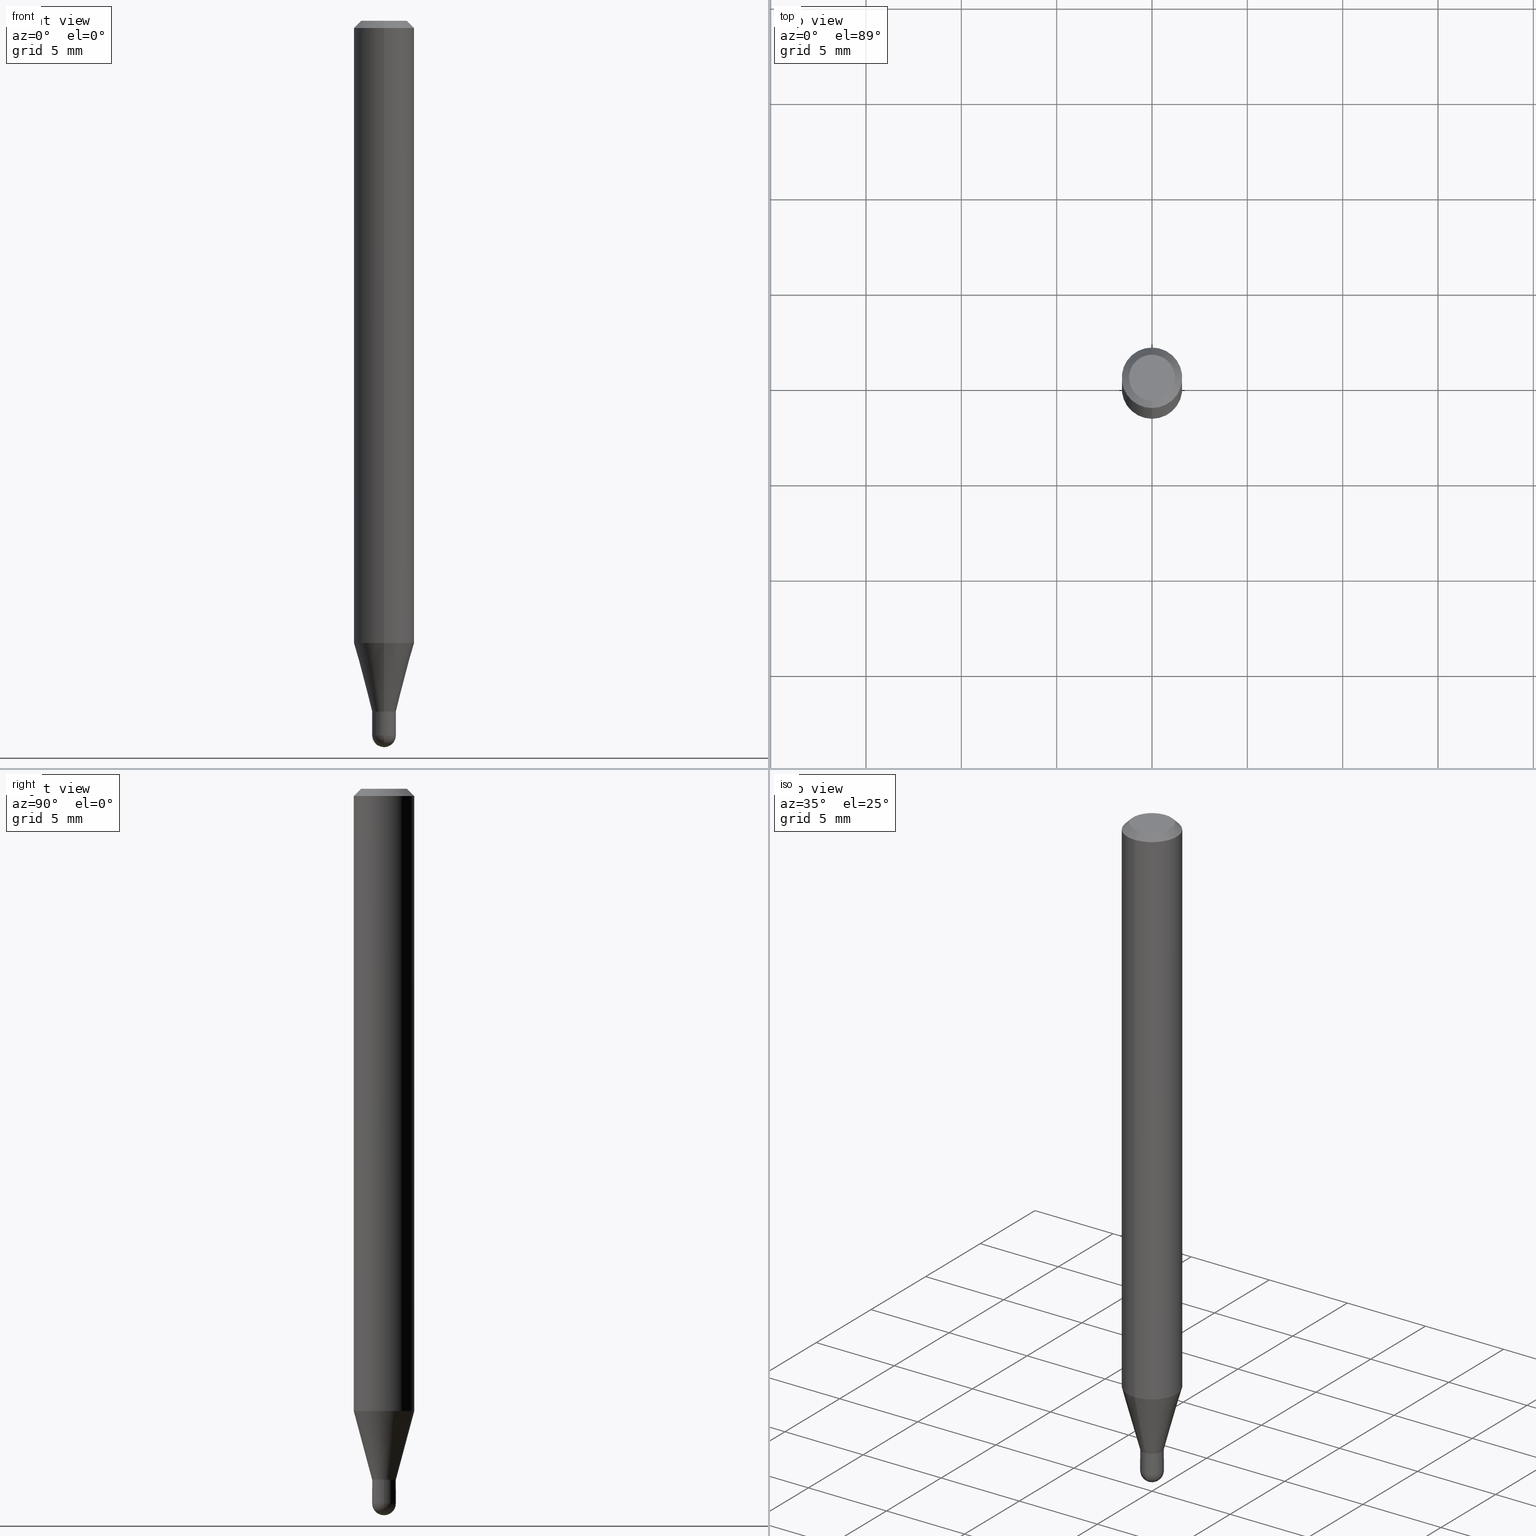
[diagram: canonical four-view strip — front | top / right | iso, engineering-drawing reading convention]
A machine part, canonical four-view strip (front | top / right | iso — engineering-drawing reading convention). The complete STEP part file that produces these views, byte-faithful:
ISO-10303-21;
HEADER;
FILE_DESCRIPTION (( 'STEP AP203' ),
    '1' );
FILE_NAME ('01406.STEP',
    '2024-03-07T20:27:31',
    ( '' ),
    ( '' ),
    'SwSTEP 2.0',
    'SolidWorks 2023',
    '' );
FILE_SCHEMA (( 'CONFIG_CONTROL_DESIGN' ));
ENDSEC;

DATA;
#1 = DIRECTION ( 'NONE',  ( -6.982962677686266711E-15, -1.000000000000000000, 3.491485359873199591E-15 ) ) ;
#2 = VERTEX_POINT ( 'NONE', #55 ) ;
#3 = APPROVAL_STATUS ( 'not_yet_approved' ) ;
#4 = ADVANCED_FACE ( 'NONE', ( #7 ), #139, .T. ) ;
#5 = SECURITY_CLASSIFICATION_LEVEL ( 'unclassified' ) ;
#6 = AXIS2_PLACEMENT_3D ( 'NONE', #372, #225, #383 ) ;
#7 = FACE_OUTER_BOUND ( 'NONE', #212, .T. ) ;
#8 = VERTEX_POINT ( 'NONE', #349 ) ;
#9 = DIRECTION ( 'NONE',  ( -6.982962677686265922E-15, -1.000000000000000000, 3.491485359873198803E-15 ) ) ;
#10 = ORIENTED_EDGE ( 'NONE', *, *, #457, .T. ) ;
#11 = EDGE_LOOP ( 'NONE', ( #239, #449, #362, #458 ) ) ;
#12 = ADVANCED_FACE ( 'NONE', ( #480 ), #475, .F. ) ;
#13 =( NAMED_UNIT ( * ) PLANE_ANGLE_UNIT ( ) SI_UNIT ( $, .RADIAN. ) );
#14 = ORIENTED_EDGE ( 'NONE', *, *, #152, .F. ) ;
#15 = CARTESIAN_POINT ( 'NONE',  ( 0.02450000000000000441, -5.237222008264718177E-15, -1.475500000000000256 ) ) ;
#16 = VECTOR ( 'NONE', #497, 39.37007874015748143 ) ;
#17 = DIRECTION ( 'NONE',  ( -4.851104656540964275E-15, -0.7071067811865500152, -0.7071067811865450192 ) ) ;
#18 = EDGE_LOOP ( 'NONE', ( #100, #78, #373, #411 ) ) ;
#19 = DIRECTION ( 'NONE',  ( 1.000000000000000000, -6.982962677686266711E-15, 4.883557194083112901E-29 ) ) ;
#20 = ORIENTED_EDGE ( 'NONE', *, *, #45, .F. ) ;
#21 = DIRECTION ( 'NONE',  ( -2.445465998314857821E-29, 3.491485359873199197E-15, 1.000000000000000000 ) ) ;
#22 = PLANE ( 'NONE',  #242 ) ;
#23 = CARTESIAN_POINT ( 'NONE',  ( 1.740829702612239852E-16, 0.02449999999999992462, -8.554139131689312602E-17 ) ) ;
#24 = ORIENTED_EDGE ( 'NONE', *, *, #30, .T. ) ;
#25 = EDGE_CURVE ( 'NONE', #481, #93, #288, .T. ) ;
#26 = CARTESIAN_POINT ( 'NONE',  ( 3.668198997472288816E-31, -5.237228039809801828E-17, -0.01500000000000000812 ) ) ;
#27 = LINE ( 'NONE', #296, #385 ) ;
#28 = CARTESIAN_POINT ( 'NONE',  ( 3.606194066117680480E-29, -5.154681100120972780E-15, -1.475500000000000256 ) ) ;
#29 = PERSON ( 'UNSPECIFIED', 'UNSPECIFIED', 'UNSPECIFIED', ('UNSPECIFIED'), ('UNSPECIFIED'), ('UNSPECIFIED') ) ;
#30 = EDGE_CURVE ( 'NONE', #446, #481, #269, .T. ) ;
#31 = CARTESIAN_POINT ( 'NONE',  ( 3.487234513596988418E-29, -4.978858123179183752E-15, -1.426000000000000378 ) ) ;
#32 = CIRCLE ( 'NONE', #263, 0.02449999999999992462 ) ;
#33 = DIRECTION ( 'NONE',  ( 2.445465998314857261E-29, -3.491485359873199197E-15, -1.000000000000000000 ) ) ;
#34 = CIRCLE ( 'NONE', #378, 0.02449999999999992462 ) ;
#35 = DIRECTION ( 'NONE',  ( -6.982962677686266711E-15, -1.000000000000000000, 3.491485359873199591E-15 ) ) ;
#36 = EDGE_CURVE ( 'NONE', #446, #287, #279, .T. ) ;
#37 = APPROVAL_DATE_TIME ( #437, #313 ) ;
#38 = DIRECTION ( 'NONE',  ( -2.445465998314857821E-29, 3.491485359873199197E-15, 1.000000000000000000 ) ) ;
#39 = DIRECTION ( 'NONE',  ( -2.445465998314857821E-29, 3.491485359873199197E-15, 1.000000000000000000 ) ) ;
#40 = AXIS2_PLACEMENT_3D ( 'NONE', #224, #491, #105 ) ;
#41 = PERSON_AND_ORGANIZATION ( #29, #365 ) ;
#42 = ORIENTED_EDGE ( 'NONE', *, *, #504, .F. ) ;
#43 = DATE_TIME_ROLE ( 'classification_date' ) ;
#44 = DIRECTION ( 'NONE',  ( -2.445465998314857821E-29, 3.491485359873199197E-15, 1.000000000000000000 ) ) ;
#45 = EDGE_CURVE ( 'NONE', #95, #180, #324, .T. ) ;
#46 = PERSON_AND_ORGANIZATION ( #29, #365 ) ;
#47 = DIRECTION ( 'NONE',  ( -2.445468806185136597E-29, 3.491481338843145583E-15, 1.000000000000000000 ) ) ;
#48 = DIRECTION ( 'NONE',  ( -6.982962677686265922E-15, -1.000000000000000000, 0.000000000000000000 ) ) ;
#49 = VECTOR ( 'NONE', #216, 39.37007874015748143 ) ;
#50 = ORIENTED_EDGE ( 'NONE', *, *, #205, .F. ) ;
#51 = AXIS2_PLACEMENT_3D ( 'NONE', #295, #179, #338 ) ;
#52 = EDGE_CURVE ( 'NONE', #217, #268, #454, .T. ) ;
#53 = ORIENTED_EDGE ( 'NONE', *, *, #504, .T. ) ;
#54 = ORIENTED_EDGE ( 'NONE', *, *, #300, .F. ) ;
#55 = CARTESIAN_POINT ( 'NONE',  ( 1.740829702612610371E-16, 0.02449999999999490780, -1.475500000000000256 ) ) ;
#56 = ORIENTED_EDGE ( 'NONE', *, *, #218, .T. ) ;
#57 = CARTESIAN_POINT ( 'NONE',  ( 3.488461252023097831E-29, -4.980598129859747686E-15, -1.426500000000000101 ) ) ;
#58 =( GEOMETRIC_REPRESENTATION_CONTEXT ( 3 ) GLOBAL_UNCERTAINTY_ASSIGNED_CONTEXT ( ( #213 ) ) GLOBAL_UNIT_ASSIGNED_CONTEXT ( ( #401, #13, #335 ) ) REPRESENTATION_CONTEXT ( 'NONE', 'WORKASPACE' ) );
#59 = CARTESIAN_POINT ( 'NONE',  ( -1.710825856033129704E-16, -0.02449999999999992462, 8.554139131689312602E-17 ) ) ;
#60 = AXIS2_PLACEMENT_3D ( 'NONE', #169, #445, #361 ) ;
#61 = ORIENTED_EDGE ( 'NONE', *, *, #36, .F. ) ;
#62 = DIRECTION ( 'NONE',  ( -2.445465998314857821E-29, 3.491485359873199197E-15, 1.000000000000000000 ) ) ;
#63 = ORIENTED_EDGE ( 'NONE', *, *, #87, .T. ) ;
#64 = DIRECTION ( 'NONE',  ( 1.000000000000000000, -6.982962677686272233E-15, 0.000000000000000000 ) ) ;
#65 = VERTEX_POINT ( 'NONE', #84 ) ;
#66 = CARTESIAN_POINT ( 'NONE',  ( 1.710825856033483952E-16, 0.02449999999999501882, -1.426500000000000101 ) ) ;
#67 = PRODUCT_DEFINITION_FORMATION_WITH_SPECIFIED_SOURCE ( 'ANY', '', #371, .NOT_KNOWN. ) ;
#68 = DIRECTION ( 'NONE',  ( -6.982962677686265133E-15, -1.000000000000000000, 0.000000000000000000 ) ) ;
#69 = CIRCLE ( 'NONE', #398, 0.06250000000000000000 ) ;
#70 = CYLINDRICAL_SURFACE ( 'NONE', #40, 0.02450000000000000441 ) ;
#71 = ADVANCED_FACE ( 'NONE', ( #479 ), #244, .T. ) ;
#72 = CYLINDRICAL_SURFACE ( 'NONE', #75, 0.06250000000000000000 ) ;
#73 = DESIGN_CONTEXT ( 'detailed design', #111, 'design' ) ;
#74 = PLANE ( 'NONE',  #120 ) ;
#75 = AXIS2_PLACEMENT_3D ( 'NONE', #410, #384, #189 ) ;
#76 = LOCAL_TIME ( 15, 27, 31.00000000000000000, #472 ) ;
#77 = AXIS2_PLACEMENT_3D ( 'NONE', #219, #412, #64 ) ;
#78 = ORIENTED_EDGE ( 'NONE', *, *, #394, .F. ) ;
#79 = APPLICATION_PROTOCOL_DEFINITION ( 'international standard', 'config_control_design', 1994, #101 ) ;
#80 = CIRCLE ( 'NONE', #482, 0.02449999999999992462 ) ;
#81 = ADVANCED_FACE ( 'NONE', ( #125 ), #273, .T. ) ;
#82 = EDGE_LOOP ( 'NONE', ( #50, #208, #163, #435, #334 ) ) ;
#83 = PERSON_AND_ORGANIZATION_ROLE ( 'design_owner' ) ;
#84 = CARTESIAN_POINT ( 'NONE',  ( -0.02450000000000000094, -4.892056452400180210E-15, -1.426500000000000101 ) ) ;
#85 = DIRECTION ( 'NONE',  ( 2.445465998314857821E-29, -3.491485359873199197E-15, -1.000000000000000000 ) ) ;
#86 = ORIENTED_EDGE ( 'NONE', *, *, #245, .F. ) ;
#87 = EDGE_CURVE ( 'NONE', #287, #446, #186, .T. ) ;
#88 = CARTESIAN_POINT ( 'NONE',  ( 4.440892098500937762E-16, 0.06249999999999550360, -1.284682069312387709 ) ) ;
#89 = AXIS2_PLACEMENT_3D ( 'NONE', #417, #374, #294 ) ;
#90 = VERTEX_POINT ( 'NONE', #486 ) ;
#91 = CIRCLE ( 'NONE', #129, 0.02400000000000000050 ) ;
#92 = ORIENTED_EDGE ( 'NONE', *, *, #195, .T. ) ;
#93 = VERTEX_POINT ( 'NONE', #420 ) ;
#94 = LINE ( 'NONE', #248, #493 ) ;
#95 = VERTEX_POINT ( 'NONE', #364 ) ;
#96 = AXIS2_PLACEMENT_3D ( 'NONE', #267, #508, #425 ) ;
#97 = CARTESIAN_POINT ( 'NONE',  ( 3.668198997472288816E-31, -5.237228039809801828E-17, -0.01500000000000000812 ) ) ;
#98 = EDGE_CURVE ( 'NONE', #287, #93, #181, .T. ) ;
#99 = CARTESIAN_POINT ( 'NONE',  ( 3.487234513596988418E-29, -4.978858123179183752E-15, -1.426000000000000378 ) ) ;
#100 = ORIENTED_EDGE ( 'NONE', *, *, #379, .F. ) ;
#101 = APPLICATION_CONTEXT ( 'configuration controlled 3d designs of mechanical parts and assemblies' ) ;
#102 = DIRECTION ( 'NONE',  ( -6.982962677686266711E-15, -1.000000000000000000, 0.000000000000000000 ) ) ;
#103 = EDGE_LOOP ( 'NONE', ( #359, #402, #61, #389 ) ) ;
#104 = DIRECTION ( 'NONE',  ( 1.000000000000000000, -6.982962677686272233E-15, 0.000000000000000000 ) ) ;
#105 = DIRECTION ( 'NONE',  ( 1.000000000000000000, -6.982962677686267499E-15, 4.876176775795936353E-29 ) ) ;
#106 = CARTESIAN_POINT ( 'NONE',  ( 0.02450000000000000094, -5.151680715463061346E-15, -1.426500000000000101 ) ) ;
#107 = EDGE_CURVE ( 'NONE', #400, #180, #340, .T. ) ;
#108 = LINE ( 'NONE', #257, #308 ) ;
#109 = SECURITY_CLASSIFICATION ( '', '', #5 ) ;
#110 = DIRECTION ( 'NONE',  ( -2.445465998314857821E-29, 3.491485359873199197E-15, 1.000000000000000000 ) ) ;
#111 = APPLICATION_CONTEXT ( 'configuration controlled 3d designs of mechanical parts and assemblies' ) ;
#112 = ADVANCED_FACE ( 'NONE', ( #332 ), #143, .T. ) ;
#113 = VECTOR ( 'NONE', #44, 39.37007874015748143 ) ;
#114 = AXIS2_PLACEMENT_3D ( 'NONE', #438, #407, #298 ) ;
#115 = APPROVAL_STATUS ( 'not_yet_approved' ) ;
#116 = CARTESIAN_POINT ( 'NONE',  ( -1.710825856032780879E-16, -0.02450000000000490674, -1.426500000000000545 ) ) ;
#117 = APPROVAL_ROLE ( '' ) ;
#118 = FACE_OUTER_BOUND ( 'NONE', #428, .T. ) ;
#119 = APPROVAL ( #3, 'UNSPECIFIED' ) ;
#120 = AXIS2_PLACEMENT_3D ( 'NONE', #142, #33, #147 ) ;
#121 = CARTESIAN_POINT ( 'NONE',  ( 3.606194066117680480E-29, -5.154681100120972780E-15, -1.475500000000000256 ) ) ;
#122 = AXIS2_PLACEMENT_3D ( 'NONE', #123, #275, #237 ) ;
#123 = CARTESIAN_POINT ( 'NONE',  ( 3.141646319148214491E-29, -4.485448637095806796E-15, -1.284682069312387265 ) ) ;
#124 = CALENDAR_DATE ( 2024, 7, 3 ) ;
#125 = FACE_OUTER_BOUND ( 'NONE', #11, .T. ) ;
#126 = EDGE_CURVE ( 'NONE', #357, #90, #265, .T. ) ;
#127 = ORIENTED_EDGE ( 'NONE', *, *, #358, .F. ) ;
#128 = ORIENTED_EDGE ( 'NONE', *, *, #87, .F. ) ;
#129 = AXIS2_PLACEMENT_3D ( 'NONE', #146, #62, #488 ) ;
#130 = ORIENTED_EDGE ( 'NONE', *, *, #379, .T. ) ;
#131 = FACE_OUTER_BOUND ( 'NONE', #451, .T. ) ;
#132 = DIRECTION ( 'NONE',  ( -6.982962677686265922E-15, -1.000000000000000000, 3.483106191921935554E-15 ) ) ;
#133 = ORIENTED_EDGE ( 'NONE', *, *, #152, .T. ) ;
#134 = EDGE_CURVE ( 'NONE', #93, #481, #69, .T. ) ;
#135 = DIRECTION ( 'NONE',  ( -2.445468806185136877E-29, 3.491481338843145188E-15, 1.000000000000000000 ) ) ;
#136 = ORIENTED_EDGE ( 'NONE', *, *, #261, .T. ) ;
#137 = CONICAL_SURFACE ( 'NONE', #423, 0.02400000000000000050, 0.7853981633974739252 ) ;
#138 = CARTESIAN_POINT ( 'NONE',  ( 4.364351673553919652E-16, 0.06249999999999995143, -0.01500000000000022669 ) ) ;
#139 = CONICAL_SURFACE ( 'NONE', #159, 0.06250000000000000000, 0.7853981633974483900 ) ;
#140 = DIRECTION ( 'NONE',  ( -6.982962677686265133E-15, -1.000000000000000000, 3.491485359873199591E-15 ) ) ;
#141 = EDGE_LOOP ( 'NONE', ( #311, #136 ) ) ;
#142 = CARTESIAN_POINT ( 'NONE',  ( 3.316907271900976096E-16, 0.04749999999999999362, -1.702756188904287318E-16 ) ) ;
#143 = SPHERICAL_SURFACE ( 'NONE', #191, 0.02450000000000012584 ) ;
#144 = CARTESIAN_POINT ( 'NONE',  ( 1.705302565824588813E-16, 0.02399999999999501837, -1.426500000000000101 ) ) ;
#145 = CC_DESIGN_PERSON_AND_ORGANIZATION_ASSIGNMENT ( #309, #469, ( #67 ) ) ;
#146 = CARTESIAN_POINT ( 'NONE',  ( 3.488457246596144951E-29, -4.980603865859119035E-15, -1.426500000000000101 ) ) ;
#147 = DIRECTION ( 'NONE',  ( 6.982962677686265922E-15, 1.000000000000000000, -3.491485359873199197E-15 ) ) ;
#148 = CONICAL_SURFACE ( 'NONE', #356, 0.02449999999999992462, 0.2617993877991574014 ) ;
#149 =( LENGTH_UNIT ( ) NAMED_UNIT ( * ) SI_UNIT ( $, .METRE. ) );
#150 = AXIS2_PLACEMENT_3D ( 'NONE', #392, #47, #204 ) ;
#151 = CARTESIAN_POINT ( 'NONE',  ( 0.000000000000000000, 0.000000000000000000, 0.000000000000000000 ) ) ;
#152 = EDGE_CURVE ( 'NONE', #217, #93, #460, .T. ) ;
#153 = PERSON_AND_ORGANIZATION ( #29, #365 ) ;
#154 = PERSON_AND_ORGANIZATION_ROLE ( 'classification_officer' ) ;
#155 = LINE ( 'NONE', #353, #442 ) ;
#156 = AXIS2_PLACEMENT_3D ( 'NONE', #285, #21, #490 ) ;
#157 = LOCAL_TIME ( 15, 27, 31.00000000000000000, #158 ) ;
#158 = COORDINATED_UNIVERSAL_TIME_OFFSET ( 5, 0, .BEHIND. ) ;
#159 = AXIS2_PLACEMENT_3D ( 'NONE', #431, #85, #207 ) ;
#160 = ADVANCED_FACE ( 'NONE', ( #289 ), #456, .T. ) ;
#161 = COORDINATED_UNIVERSAL_TIME_OFFSET ( 5, 0, .BEHIND. ) ;
#162 = APPROVAL_STATUS ( 'not_yet_approved' ) ;
#163 = ORIENTED_EDGE ( 'NONE', *, *, #300, .T. ) ;
#164 = CALENDAR_DATE ( 2024, 7, 3 ) ;
#165 = EDGE_LOOP ( 'NONE', ( #408, #274, #397, #20 ) ) ;
#166 = AXIS2_PLACEMENT_3D ( 'NONE', #31, #503, #68 ) ;
#167 = CALENDAR_DATE ( 2024, 7, 3 ) ;
#168 = AXIS2_PLACEMENT_3D ( 'NONE', #26, #185, #409 ) ;
#169 = CARTESIAN_POINT ( 'NONE',  ( 3.668198997472288816E-31, -5.237228039809801828E-17, -0.01500000000000000812 ) ) ;
#170 = DIRECTION ( 'NONE',  ( -2.445468806185136597E-29, 3.491481338843145583E-15, 1.000000000000000000 ) ) ;
#171 = DIRECTION ( 'NONE',  ( -2.445465998314857821E-29, 3.491485359873199197E-15, 1.000000000000000000 ) ) ;
#172 = ORIENTED_EDGE ( 'NONE', *, *, #278, .T. ) ;
#173 = ORIENTED_EDGE ( 'NONE', *, *, #266, .F. ) ;
#174 = CC_DESIGN_APPROVAL ( #119, ( #67 ) ) ;
#175 = APPROVAL_PERSON_ORGANIZATION ( #41, #313, #232 ) ;
#176 = DIRECTION ( 'NONE',  ( -2.445465998314857821E-29, 3.491485359873199197E-15, 1.000000000000000000 ) ) ;
#177 = VERTEX_POINT ( 'NONE', #106 ) ;
#178 = CC_DESIGN_DATE_AND_TIME_ASSIGNMENT ( #319, #43, ( #109 ) ) ;
#179 = DIRECTION ( 'NONE',  ( -2.445468806185136597E-29, 3.491481338843145583E-15, 1.000000000000000000 ) ) ;
#180 = VERTEX_POINT ( 'NONE', #210 ) ;
#181 = LINE ( 'NONE', #459, #386 ) ;
#182 = ORIENTED_EDGE ( 'NONE', *, *, #98, .F. ) ;
#183 = CIRCLE ( 'NONE', #465, 0.02450000000000012584 ) ;
#184 = EDGE_CURVE ( 'NONE', #2, #357, #476, .T. ) ;
#185 = DIRECTION ( 'NONE',  ( 2.445465998314857821E-29, -3.491485359873199197E-15, -1.000000000000000000 ) ) ;
#186 = CIRCLE ( 'NONE', #505, 0.06250000000000000000 ) ;
#187 = CARTESIAN_POINT ( 'NONE',  ( -0.02450000000000000441, -4.892056452400180210E-15, -1.475500000000000256 ) ) ;
#188 = DIRECTION ( 'NONE',  ( -1.000000000000000000, 6.982962677686265922E-15, -4.876176775795935793E-29 ) ) ;
#189 = DIRECTION ( 'NONE',  ( -6.982962677686265922E-15, -1.000000000000000000, 3.491485359873198803E-15 ) ) ;
#190 = CARTESIAN_POINT ( 'NONE',  ( 2.166714321464292674E-46, -3.093500926871671452E-32, -8.860128592903562071E-18 ) ) ;
#191 = AXIS2_PLACEMENT_3D ( 'NONE', #28, #19, #492 ) ;
#192 = CYLINDRICAL_SURFACE ( 'NONE', #418, 0.02449999999999992462 ) ;
#193 = ADVANCED_FACE ( 'NONE', ( #375 ), #317, .T. ) ;
#194 = DATE_AND_TIME ( #124, #276 ) ;
#195 = EDGE_CURVE ( 'NONE', #268, #481, #108, .T. ) ;
#196 = CARTESIAN_POINT ( 'NONE',  ( -4.364351673553603615E-16, -0.06250000000000451028, -1.284682069312387043 ) ) ;
#197 = APPROVAL_PERSON_ORGANIZATION ( #354, #119, #117 ) ;
#198 = MECHANICAL_CONTEXT ( 'NONE', #101, 'mechanical' ) ;
#199 = AXIS2_PLACEMENT_3D ( 'NONE', #329, #260, #102 ) ;
#200 = ORIENTED_EDGE ( 'NONE', *, *, #440, .F. ) ;
#201 = CARTESIAN_POINT ( 'NONE',  ( -1.675911042644354999E-16, -0.02400000000000497916, -1.426500000000000101 ) ) ;
#202 = DIRECTION ( 'NONE',  ( -2.445465998314857821E-29, 3.491485359873199197E-15, 1.000000000000000000 ) ) ;
#203 = DATE_AND_TIME ( #391, #157 ) ;
#204 = DIRECTION ( 'NONE',  ( 1.000000000000000000, -6.982962677686267499E-15, 4.876176775795936353E-29 ) ) ;
#205 = EDGE_CURVE ( 'NONE', #357, #65, #499, .T. ) ;
#206 = CARTESIAN_POINT ( 'NONE',  ( 3.141646319148214491E-29, -4.485448637095806796E-15, -1.284682069312387265 ) ) ;
#207 = DIRECTION ( 'NONE',  ( 6.982962677686265922E-15, 1.000000000000000000, -3.483106191921935554E-15 ) ) ;
#208 = ORIENTED_EDGE ( 'NONE', *, *, #126, .T. ) ;
#209 = LENGTH_MEASURE_WITH_UNIT ( LENGTH_MEASURE( 0.02539999999999999897 ), #149 );
#210 = CARTESIAN_POINT ( 'NONE',  ( -1.710825856032787042E-16, -0.02450000000000498654, -1.426000000000000378 ) ) ;
#211 = ADVANCED_FACE ( 'NONE', ( #214 ), #22, .F. ) ;
#212 = EDGE_LOOP ( 'NONE', ( #393, #92, #322, #14 ) ) ;
#213 = UNCERTAINTY_MEASURE_WITH_UNIT (LENGTH_MEASURE( 1.000000000000000082E-05 ), #401, 'distance_accuracy_value', 'NONE');
#214 = FACE_OUTER_BOUND ( 'NONE', #141, .T. ) ;
#215 = ORIENTED_EDGE ( 'NONE', *, *, #462, .F. ) ;
#216 = DIRECTION ( 'NONE',  ( -2.445465998314857821E-29, 3.491485359873199197E-15, 1.000000000000000000 ) ) ;
#217 = VERTEX_POINT ( 'NONE', #448 ) ;
#218 = EDGE_CURVE ( 'NONE', #403, #95, #91, .T. ) ;
#219 = CARTESIAN_POINT ( 'NONE',  ( 3.608289223526169394E-29, -5.151680715463062135E-15, -1.475500000000000256 ) ) ;
#220 = DIRECTION ( 'NONE',  ( -2.445468806185136597E-29, 3.491481338843145583E-15, 1.000000000000000000 ) ) ;
#221 = CONICAL_SURFACE ( 'NONE', #156, 0.02400000000000000050, 0.7853981633974739252 ) ;
#222 = DIRECTION ( 'NONE',  ( -2.445465998314857821E-29, 3.491485359873199197E-15, 1.000000000000000000 ) ) ;
#223 = CLOSED_SHELL ( 'NONE', ( #290, #427, #4, #81, #256, #447, #370, #193, #331, #12, #271, #341 ) ) ;
#224 = CARTESIAN_POINT ( 'NONE',  ( 0.000000000000000000, 0.000000000000000000, 0.000000000000000000 ) ) ;
#225 = DIRECTION ( 'NONE',  ( -2.445465998314857821E-29, 3.491485359873199197E-15, 1.000000000000000000 ) ) ;
#226 = FACE_OUTER_BOUND ( 'NONE', #292, .T. ) ;
#227 = PRODUCT_RELATED_PRODUCT_CATEGORY ( 'detail', '', ( #371 ) ) ;
#228 = CARTESIAN_POINT ( 'NONE',  ( -3.773273898774340269E-16, -0.04749999999999999362, 1.569854260010734111E-16 ) ) ;
#229 = AXIS2_PLACEMENT_3D ( 'NONE', #336, #500, #422 ) ;
#230 = AXIS2_PLACEMENT_3D ( 'NONE', #443, #272, #241 ) ;
#231 = CC_DESIGN_PERSON_AND_ORGANIZATION_ASSIGNMENT ( #506, #424, ( #67 ) ) ;
#232 = APPROVAL_ROLE ( '' ) ;
#233 = DATE_AND_TIME ( #426, #325 ) ;
#234 = AXIS2_PLACEMENT_3D ( 'NONE', #498, #419, #104 ) ;
#235 = EDGE_LOOP ( 'NONE', ( #255, #471, #133, #326 ) ) ;
#236 = APPLICATION_PROTOCOL_DEFINITION ( 'international standard', 'config_control_design', 1994, #111 ) ;
#237 = DIRECTION ( 'NONE',  ( -6.982962677686265922E-15, -1.000000000000000000, 4.370956789862821150E-15 ) ) ;
#238 = PERSON_AND_ORGANIZATION_ROLE ( 'creator' ) ;
#239 = ORIENTED_EDGE ( 'NONE', *, *, #36, .T. ) ;
#240 = EDGE_CURVE ( 'NONE', #489, #400, #34, .T. ) ;
#241 = DIRECTION ( 'NONE',  ( -6.982962677686265922E-15, -1.000000000000000000, 3.491485359873199197E-15 ) ) ;
#242 = AXIS2_PLACEMENT_3D ( 'NONE', #66, #368, #188 ) ;
#243 = VECTOR ( 'NONE', #434, 39.37007874015748143 ) ;
#244 = CYLINDRICAL_SURFACE ( 'NONE', #150, 0.02450000000000000441 ) ;
#245 = EDGE_CURVE ( 'NONE', #281, #177, #94, .T. ) ;
#246 = CARTESIAN_POINT ( 'NONE',  ( -4.364351673553916201E-16, -0.06250000000000000000, 2.182178349920749252E-16 ) ) ;
#247 = DIMENSIONAL_EXPONENTS ( 1.000000000000000000, 0.000000000000000000, 0.000000000000000000, 0.000000000000000000, 0.000000000000000000, 0.000000000000000000, 0.000000000000000000 ) ;
#248 = CARTESIAN_POINT ( 'NONE',  ( 0.02450000000000000441, -1.710825856033135867E-16, 1.194663310070004571E-30 ) ) ;
#249 = DIRECTION ( 'NONE',  ( 1.839019923739649225E-15, 0.2588190451025318417, 0.9659258262890653146 ) ) ;
#250 = ORIENTED_EDGE ( 'NONE', *, *, #240, .T. ) ;
#251 = PRODUCT_DEFINITION_SHAPE ( 'NONE', 'NONE',  #485 ) ;
#252 = CIRCLE ( 'NONE', #270, 0.04749999999999999362 ) ;
#253 = ORIENTED_EDGE ( 'NONE', *, *, #184, .F. ) ;
#254 = DIRECTION ( 'NONE',  ( -2.445465998314857821E-29, 3.491485359873199197E-15, 1.000000000000000000 ) ) ;
#255 = ORIENTED_EDGE ( 'NONE', *, *, #195, .F. ) ;
#256 = ADVANCED_FACE ( 'NONE', ( #450 ), #406, .T. ) ;
#257 = CARTESIAN_POINT ( 'NONE',  ( -4.287811248607203282E-16, -0.06250000000000005551, -0.01499999999999979128 ) ) ;
#258 = CYLINDRICAL_SURFACE ( 'NONE', #229, 0.02449999999999992462 ) ;
#259 = CC_DESIGN_APPROVAL ( #415, ( #485 ) ) ;
#260 = DIRECTION ( 'NONE',  ( 1.000000000000000000, -6.982962677686266711E-15, 4.883557194083112901E-29 ) ) ;
#261 = EDGE_CURVE ( 'NONE', #65, #177, #346, .T. ) ;
#262 = DIRECTION ( 'NONE',  ( -2.445465998314857821E-29, 3.491485359873199197E-15, 1.000000000000000000 ) ) ;
#263 = AXIS2_PLACEMENT_3D ( 'NONE', #99, #110, #413 ) ;
#264 = ADVANCED_BREP_SHAPE_REPRESENTATION ( '01406', ( #321, #501, #502 ), #58 ) ;
#265 = CIRCLE ( 'NONE', #51, 0.02450000000000000441 ) ;
#266 = EDGE_CURVE ( 'NONE', #489, #287, #155, .T. ) ;
#267 = CARTESIAN_POINT ( 'NONE',  ( 3.488457246596144951E-29, -4.980603865859119035E-15, -1.426500000000000101 ) ) ;
#268 = VERTEX_POINT ( 'NONE', #228 ) ;
#269 = LINE ( 'NONE', #246, #113 ) ;
#270 = AXIS2_PLACEMENT_3D ( 'NONE', #190, #39, #35 ) ;
#271 = ADVANCED_FACE ( 'NONE', ( #328 ), #221, .T. ) ;
#272 = DIRECTION ( 'NONE',  ( -2.445465998314857261E-29, 3.491485359873199197E-15, 1.000000000000000000 ) ) ;
#273 = CYLINDRICAL_SURFACE ( 'NONE', #367, 0.06250000000000000000 ) ;
#274 = ORIENTED_EDGE ( 'NONE', *, *, #358, .T. ) ;
#275 = DIRECTION ( 'NONE',  ( -2.445465998314857821E-29, 3.491485359873199197E-15, 1.000000000000000000 ) ) ;
#276 = LOCAL_TIME ( 15, 27, 31.00000000000000000, #161 ) ;
#277 = ORIENTED_EDGE ( 'NONE', *, *, #205, .T. ) ;
#278 = EDGE_CURVE ( 'NONE', #281, #2, #377, .T. ) ;
#279 = CIRCLE ( 'NONE', #122, 0.06250000000000000000 ) ;
#280 = ORIENTED_EDGE ( 'NONE', *, *, #278, .F. ) ;
#281 = VERTEX_POINT ( 'NONE', #15 ) ;
#282 = FACE_OUTER_BOUND ( 'NONE', #82, .T. ) ;
#283 = DIRECTION ( 'NONE',  ( 4.937700262164548042E-15, 0.7071067811865451302, -0.7071067811865499042 ) ) ;
#284 = ORIENTED_EDGE ( 'NONE', *, *, #52, .T. ) ;
#285 = CARTESIAN_POINT ( 'NONE',  ( 3.488457246596144951E-29, -4.980603865859119035E-15, -1.426500000000000101 ) ) ;
#286 = DIRECTION ( 'NONE',  ( -6.982962677686265133E-15, -1.000000000000000000, 0.000000000000000000 ) ) ;
#287 = VERTEX_POINT ( 'NONE', #88 ) ;
#288 = CIRCLE ( 'NONE', #60, 0.06250000000000000000 ) ;
#289 = FACE_OUTER_BOUND ( 'NONE', #366, .T. ) ;
#290 = ADVANCED_FACE ( 'NONE', ( #131 ), #258, .F. ) ;
#291 = CARTESIAN_POINT ( 'NONE',  ( 1.740829702612582514E-16, 0.02449999999999486269, -1.426000000000000378 ) ) ;
#292 = EDGE_LOOP ( 'NONE', ( #182, #63, #24, #484 ) ) ;
#293 = FACE_OUTER_BOUND ( 'NONE', #18, .T. ) ;
#294 = DIRECTION ( 'NONE',  ( 7.105427357600999492E-15, 1.000000000000000000, 0.000000000000000000 ) ) ;
#295 = CARTESIAN_POINT ( 'NONE',  ( 3.608289223526169394E-29, -5.151680715463062135E-15, -1.475500000000000256 ) ) ;
#296 = CARTESIAN_POINT ( 'NONE',  ( -1.710825856032780879E-16, -0.02450000000000490674, -1.426500000000000545 ) ) ;
#297 = CARTESIAN_POINT ( 'NONE',  ( 3.488457246596145511E-29, -4.980603865859119824E-15, -1.426500000000000545 ) ) ;
#298 = DIRECTION ( 'NONE',  ( 1.000000000000000000, -6.982962677686273810E-15, 0.000000000000000000 ) ) ;
#299 = CARTESIAN_POINT ( 'NONE',  ( 3.488457246596145511E-29, -4.980603865859119824E-15, -1.426500000000000545 ) ) ;
#300 = EDGE_CURVE ( 'NONE', #90, #281, #301, .T. ) ;
#301 = CIRCLE ( 'NONE', #234, 0.02450000000000000441 ) ;
#302 = CLOSED_SHELL ( 'NONE', ( #71, #160, #211, #112, #467 ) ) ;
#303 = LINE ( 'NONE', #144, #474 ) ;
#304 = EDGE_CURVE ( 'NONE', #399, #180, #343, .T. ) ;
#305 = COORDINATED_UNIVERSAL_TIME_OFFSET ( 5, 0, .BEHIND. ) ;
#306 = APPROVAL_PERSON_ORGANIZATION ( #153, #415, #512 ) ;
#307 = DIRECTION ( 'NONE',  ( -6.982962677686265922E-15, -1.000000000000000000, 0.000000000000000000 ) ) ;
#308 = VECTOR ( 'NONE', #17, 39.37007874015748143 ) ;
#309 = PERSON_AND_ORGANIZATION ( #29, #365 ) ;
#310 = EDGE_LOOP ( 'NONE', ( #215, #53, #414, #253 ) ) ;
#311 = ORIENTED_EDGE ( 'NONE', *, *, #478, .T. ) ;
#312 = DIRECTION ( 'NONE',  ( 0.000000000000000000, 0.000000000000000000, 1.000000000000000000 ) ) ;
#313 = APPROVAL ( #162, 'UNSPECIFIED' ) ;
#314 = SHAPE_DEFINITION_REPRESENTATION ( #251, #264 ) ;
#315 = ORIENTED_EDGE ( 'NONE', *, *, #304, .T. ) ;
#316 = CIRCLE ( 'NONE', #96, 0.02400000000000000050 ) ;
#317 = CONICAL_SURFACE ( 'NONE', #168, 0.06250000000000000000, 0.7853981633974483900 ) ;
#318 = COORDINATED_UNIVERSAL_TIME_OFFSET ( 5, 0, .BEHIND. ) ;
#319 = DATE_AND_TIME ( #167, #461 ) ;
#320 = ORIENTED_EDGE ( 'NONE', *, *, #218, .F. ) ;
#321 = MANIFOLD_SOLID_BREP ( 'Body-Move/Copy2[1]', #302 ) ;
#322 = ORIENTED_EDGE ( 'NONE', *, *, #25, .T. ) ;
#323 = CC_DESIGN_DATE_AND_TIME_ASSIGNMENT ( #203, #468, ( #485 ) ) ;
#324 = LINE ( 'NONE', #201, #243 ) ;
#325 = LOCAL_TIME ( 15, 27, 31.00000000000000000, #318 ) ;
#326 = ORIENTED_EDGE ( 'NONE', *, *, #134, .T. ) ;
#327 = EDGE_LOOP ( 'NONE', ( #200, #320 ) ) ;
#328 = FACE_OUTER_BOUND ( 'NONE', #473, .T. ) ;
#329 = CARTESIAN_POINT ( 'NONE',  ( 3.606194066117680480E-29, -5.154681100120972780E-15, -1.475500000000000256 ) ) ;
#330 = ORIENTED_EDGE ( 'NONE', *, *, #240, .F. ) ;
#331 = ADVANCED_FACE ( 'NONE', ( #381 ), #74, .F. ) ;
#332 = FACE_OUTER_BOUND ( 'NONE', #310, .T. ) ;
#333 = DIRECTION ( 'NONE',  ( -6.982962677686265133E-15, -1.000000000000000000, 0.000000000000000000 ) ) ;
#334 = ORIENTED_EDGE ( 'NONE', *, *, #261, .F. ) ;
#335 =( NAMED_UNIT ( * ) SI_UNIT ( $, .STERADIAN. ) SOLID_ANGLE_UNIT ( ) );
#336 = CARTESIAN_POINT ( 'NONE',  ( 0.000000000000000000, 0.000000000000000000, 0.000000000000000000 ) ) ;
#337 = CIRCLE ( 'NONE', #89, 0.02450000000000012584 ) ;
#338 = DIRECTION ( 'NONE',  ( 1.000000000000000000, -6.982962677686272233E-15, 0.000000000000000000 ) ) ;
#339 = DIRECTION ( 'NONE',  ( -1.807323732225378260E-15, -0.2588190451025250693, 0.9659258262890670910 ) ) ;
#340 = LINE ( 'NONE', #59, #49 ) ;
#341 = ADVANCED_FACE ( 'NONE', ( #293 ), #192, .F. ) ;
#342 = LINE ( 'NONE', #23, #16 ) ;
#343 = CIRCLE ( 'NONE', #166, 0.02449999999999992462 ) ;
#344 = EDGE_CURVE ( 'NONE', #180, #399, #32, .T. ) ;
#345 = CARTESIAN_POINT ( 'NONE',  ( 3.488457246596144951E-29, -4.980603865859119035E-15, -1.426500000000000101 ) ) ;
#346 = CIRCLE ( 'NONE', #114, 0.02450000000000000094 ) ;
#347 = CARTESIAN_POINT ( 'NONE',  ( 3.488457246596145511E-29, -4.980603865859119824E-15, -1.426500000000000545 ) ) ;
#348 = VECTOR ( 'NONE', #380, 39.37007874015748143 ) ;
#349 = CARTESIAN_POINT ( 'NONE',  ( 3.665060473164972086E-29, -5.241722585251585722E-15, -1.500000000000000444 ) ) ;
#350 = CC_DESIGN_PERSON_AND_ORGANIZATION_ASSIGNMENT ( #510, #154, ( #109 ) ) ;
#351 = PERSON_AND_ORGANIZATION ( #29, #365 ) ;
#352 = DIRECTION ( 'NONE',  ( -2.445465998314857821E-29, 3.491485359873199197E-15, 1.000000000000000000 ) ) ;
#353 = CARTESIAN_POINT ( 'NONE',  ( 1.740829702612588430E-16, 0.02449999999999494249, -1.426500000000000545 ) ) ;
#354 = PERSON_AND_ORGANIZATION ( #29, #365 ) ;
#355 = ORIENTED_EDGE ( 'NONE', *, *, #304, .F. ) ;
#356 = AXIS2_PLACEMENT_3D ( 'NONE', #347, #202, #376 ) ;
#357 = VERTEX_POINT ( 'NONE', #187 ) ;
#358 = EDGE_CURVE ( 'NONE', #403, #399, #303, .T. ) ;
#359 = ORIENTED_EDGE ( 'NONE', *, *, #394, .T. ) ;
#360 = EDGE_LOOP ( 'NONE', ( #444, #277, #495, #86, #172 ) ) ;
#361 = DIRECTION ( 'NONE',  ( -6.982962677686265922E-15, -1.000000000000000000, 3.483106191921935554E-15 ) ) ;
#362 = ORIENTED_EDGE ( 'NONE', *, *, #25, .F. ) ;
#363 = CARTESIAN_POINT ( 'NONE',  ( 3.608289223526169394E-29, -5.151680715463062135E-15, -1.475500000000000256 ) ) ;
#364 = CARTESIAN_POINT ( 'NONE',  ( -1.675911042644354999E-16, -0.02400000000000497916, -1.426500000000000101 ) ) ;
#365 = ORGANIZATION ( 'UNSPECIFIED', 'UNSPECIFIED', '' ) ;
#366 = EDGE_LOOP ( 'NONE', ( #42, #369, #280, #54 ) ) ;
#367 = AXIS2_PLACEMENT_3D ( 'NONE', #439, #395, #9 ) ;
#368 = DIRECTION ( 'NONE',  ( 2.438088387897960049E-29, -3.491481338843145188E-15, -1.000000000000000000 ) ) ;
#369 = ORIENTED_EDGE ( 'NONE', *, *, #462, .T. ) ;
#370 = ADVANCED_FACE ( 'NONE', ( #226 ), #72, .T. ) ;
#371 = PRODUCT ( '01406', '01406', '', ( #198 ) ) ;
#372 = CARTESIAN_POINT ( 'NONE',  ( 3.488457246596145511E-29, -4.980603865859119824E-15, -1.426500000000000545 ) ) ;
#373 = ORIENTED_EDGE ( 'NONE', *, *, #107, .T. ) ;
#374 = DIRECTION ( 'NONE',  ( 1.000000000000000000, -7.105427357601001070E-15, 4.926315508542082329E-29 ) ) ;
#375 = FACE_OUTER_BOUND ( 'NONE', #235, .T. ) ;
#376 = DIRECTION ( 'NONE',  ( -6.982962677686265133E-15, -1.000000000000000000, 0.000000000000000000 ) ) ;
#377 = CIRCLE ( 'NONE', #494, 0.02450000000000000441 ) ;
#378 = AXIS2_PLACEMENT_3D ( 'NONE', #299, #176, #286 ) ;
#379 = EDGE_CURVE ( 'NONE', #489, #399, #342, .T. ) ;
#380 = DIRECTION ( 'NONE',  ( -2.445468806185136877E-29, 3.491481338843145188E-15, 1.000000000000000000 ) ) ;
#381 = FACE_OUTER_BOUND ( 'NONE', #477, .T. ) ;
#382 = DIRECTION ( 'NONE',  ( 1.000000000000000000, -6.982962677686273810E-15, 0.000000000000000000 ) ) ;
#383 = DIRECTION ( 'NONE',  ( -6.982962677686265133E-15, -1.000000000000000000, 0.000000000000000000 ) ) ;
#384 = DIRECTION ( 'NONE',  ( -2.445465998314857821E-29, 3.491485359873199197E-15, 1.000000000000000000 ) ) ;
#385 = VECTOR ( 'NONE', #339, 39.37007874015748854 ) ;
#386 = VECTOR ( 'NONE', #222, 39.37007874015748143 ) ;
#387 = FACE_OUTER_BOUND ( 'NONE', #165, .T. ) ;
#388 = CC_DESIGN_PERSON_AND_ORGANIZATION_ASSIGNMENT ( #46, #238, ( #485 ) ) ;
#389 = ORIENTED_EDGE ( 'NONE', *, *, #457, .F. ) ;
#390 = CARTESIAN_POINT ( 'NONE',  ( 2.166714321464292674E-46, -3.093500926871671452E-32, -8.860128592903562071E-18 ) ) ;
#391 = CALENDAR_DATE ( 2024, 7, 3 ) ;
#392 = CARTESIAN_POINT ( 'NONE',  ( 0.000000000000000000, 0.000000000000000000, 0.000000000000000000 ) ) ;
#393 = ORIENTED_EDGE ( 'NONE', *, *, #405, .F. ) ;
#394 = EDGE_CURVE ( 'NONE', #400, #489, #80, .T. ) ;
#395 = DIRECTION ( 'NONE',  ( -2.445465998314857821E-29, 3.491485359873199197E-15, 1.000000000000000000 ) ) ;
#396 = AXIS2_PLACEMENT_3D ( 'NONE', #57, #220, #382 ) ;
#397 = ORIENTED_EDGE ( 'NONE', *, *, #344, .F. ) ;
#398 = AXIS2_PLACEMENT_3D ( 'NONE', #97, #254, #132 ) ;
#399 = VERTEX_POINT ( 'NONE', #291 ) ;
#400 = VERTEX_POINT ( 'NONE', #116 ) ;
#401 =( CONVERSION_BASED_UNIT ( 'INCH', #209 ) LENGTH_UNIT ( ) NAMED_UNIT ( #247 ) );
#402 = ORIENTED_EDGE ( 'NONE', *, *, #266, .T. ) ;
#403 = VERTEX_POINT ( 'NONE', #470 ) ;
#404 = DIRECTION ( 'NONE',  ( -6.982962677686265922E-15, -1.000000000000000000, 4.370956789862821150E-15 ) ) ;
#405 = EDGE_CURVE ( 'NONE', #268, #217, #252, .T. ) ;
#406 = CONICAL_SURFACE ( 'NONE', #6, 0.02449999999999992462, 0.2617993877991574014 ) ;
#407 = DIRECTION ( 'NONE',  ( -2.445468806185136597E-29, 3.491481338843145583E-15, 1.000000000000000000 ) ) ;
#408 = ORIENTED_EDGE ( 'NONE', *, *, #440, .T. ) ;
#409 = DIRECTION ( 'NONE',  ( 6.982962677686265922E-15, 1.000000000000000000, -3.483106191921935554E-15 ) ) ;
#410 = CARTESIAN_POINT ( 'NONE',  ( 0.000000000000000000, 0.000000000000000000, 0.000000000000000000 ) ) ;
#411 = ORIENTED_EDGE ( 'NONE', *, *, #344, .T. ) ;
#412 = DIRECTION ( 'NONE',  ( -2.445468806185136597E-29, 3.491481338843145583E-15, 1.000000000000000000 ) ) ;
#413 = DIRECTION ( 'NONE',  ( -6.982962677686265133E-15, -1.000000000000000000, 0.000000000000000000 ) ) ;
#414 = ORIENTED_EDGE ( 'NONE', *, *, #126, .F. ) ;
#415 = APPROVAL ( #115, 'UNSPECIFIED' ) ;
#416 = CARTESIAN_POINT ( 'NONE',  ( -0.02450000000000000441, 1.740829702612245769E-16, -1.205139097112452116E-30 ) ) ;
#417 = CARTESIAN_POINT ( 'NONE',  ( 3.606194066117680480E-29, -5.154681100120972780E-15, -1.475500000000000256 ) ) ;
#418 = AXIS2_PLACEMENT_3D ( 'NONE', #151, #453, #140 ) ;
#419 = DIRECTION ( 'NONE',  ( -2.445468806185136597E-29, 3.491481338843145583E-15, 1.000000000000000000 ) ) ;
#420 = CARTESIAN_POINT ( 'NONE',  ( 4.440892098500941706E-16, 0.06249999999999995143, -0.01500000000000022669 ) ) ;
#421 = DIRECTION ( 'NONE',  ( 5.024295867788190974E-15, 0.7071067811865681119, 0.7071067811865270336 ) ) ;
#422 = DIRECTION ( 'NONE',  ( -6.982962677686265133E-15, -1.000000000000000000, 3.491485359873199591E-15 ) ) ;
#423 = AXIS2_PLACEMENT_3D ( 'NONE', #345, #38, #307 ) ;
#424 = PERSON_AND_ORGANIZATION_ROLE ( 'creator' ) ;
#425 = DIRECTION ( 'NONE',  ( -6.982962677686265922E-15, -1.000000000000000000, 0.000000000000000000 ) ) ;
#426 = CALENDAR_DATE ( 2024, 7, 3 ) ;
#427 = ADVANCED_FACE ( 'NONE', ( #387 ), #137, .T. ) ;
#428 = EDGE_LOOP ( 'NONE', ( #173, #250, #10, #128 ) ) ;
#429 = CARTESIAN_POINT ( 'NONE',  ( 3.090860900556765438E-16, 0.02449999999999494596, -1.426500000000000545 ) ) ;
#430 = CIRCLE ( 'NONE', #396, 0.02450000000000000094 ) ;
#431 = CARTESIAN_POINT ( 'NONE',  ( 3.668198997472288816E-31, -5.237228039809801828E-17, -0.01500000000000000812 ) ) ;
#432 = CARTESIAN_POINT ( 'NONE',  ( 0.000000000000000000, 0.000000000000000000, 0.000000000000000000 ) ) ;
#433 = APPROVAL_DATE_TIME ( #233, #119 ) ;
#434 = DIRECTION ( 'NONE',  ( -4.937700262164674260E-15, -0.7071067811865632269, 0.7071067811865319186 ) ) ;
#435 = ORIENTED_EDGE ( 'NONE', *, *, #245, .T. ) ;
#436 = DIRECTION ( 'NONE',  ( -1.000000000000000000, 6.982962677686265922E-15, -4.883557194083112340E-29 ) ) ;
#437 = DATE_AND_TIME ( #164, #76 ) ;
#438 = CARTESIAN_POINT ( 'NONE',  ( 3.488461252023097831E-29, -4.980598129859747686E-15, -1.426500000000000101 ) ) ;
#439 = CARTESIAN_POINT ( 'NONE',  ( 0.000000000000000000, 0.000000000000000000, 0.000000000000000000 ) ) ;
#440 = EDGE_CURVE ( 'NONE', #95, #403, #316, .T. ) ;
#441 = DIRECTION ( 'NONE',  ( 1.000000000000000000, -6.982962677686272233E-15, 0.000000000000000000 ) ) ;
#442 = VECTOR ( 'NONE', #249, 39.37007874015748143 ) ;
#443 = CARTESIAN_POINT ( 'NONE',  ( 3.488457246596144951E-29, -4.980603865859119035E-15, -1.426500000000000101 ) ) ;
#444 = ORIENTED_EDGE ( 'NONE', *, *, #184, .T. ) ;
#445 = DIRECTION ( 'NONE',  ( -2.445465998314857821E-29, 3.491485359873199197E-15, 1.000000000000000000 ) ) ;
#446 = VERTEX_POINT ( 'NONE', #196 ) ;
#447 = ADVANCED_FACE ( 'NONE', ( #118 ), #148, .T. ) ;
#448 = CARTESIAN_POINT ( 'NONE',  ( 3.840629472727447874E-16, 0.04749999999999999362, -1.747056831868805136E-16 ) ) ;
#449 = ORIENTED_EDGE ( 'NONE', *, *, #98, .T. ) ;
#450 = FACE_OUTER_BOUND ( 'NONE', #103, .T. ) ;
#451 = EDGE_LOOP ( 'NONE', ( #330, #130, #315, #511 ) ) ;
#452 = CC_DESIGN_SECURITY_CLASSIFICATION ( #109, ( #67 ) ) ;
#453 = DIRECTION ( 'NONE',  ( -2.445465998314857821E-29, 3.491485359873199197E-15, 1.000000000000000000 ) ) ;
#454 = CIRCLE ( 'NONE', #464, 0.04749999999999999362 ) ;
#455 = CARTESIAN_POINT ( 'NONE',  ( -4.364351673553912750E-16, -0.06250000000000005551, -0.01499999999999979128 ) ) ;
#456 = SPHERICAL_SURFACE ( 'NONE', #199, 0.02450000000000012584 ) ;
#457 = EDGE_CURVE ( 'NONE', #400, #446, #27, .T. ) ;
#458 = ORIENTED_EDGE ( 'NONE', *, *, #30, .F. ) ;
#459 = CARTESIAN_POINT ( 'NONE',  ( 4.440892098500625669E-16, 0.06250000000000000000, -2.182178349920749252E-16 ) ) ;
#460 = LINE ( 'NONE', #138, #466 ) ;
#461 = LOCAL_TIME ( 15, 27, 31.00000000000000000, #305 ) ;
#462 = EDGE_CURVE ( 'NONE', #8, #2, #337, .T. ) ;
#463 = DIRECTION ( 'NONE',  ( 1.000000000000000000, 0.000000000000000000, 0.000000000000000000 ) ) ;
#464 = AXIS2_PLACEMENT_3D ( 'NONE', #390, #352, #1 ) ;
#465 = AXIS2_PLACEMENT_3D ( 'NONE', #121, #436, #48 ) ;
#466 = VECTOR ( 'NONE', #283, 39.37007874015748143 ) ;
#467 = ADVANCED_FACE ( 'NONE', ( #282 ), #70, .T. ) ;
#468 = DATE_TIME_ROLE ( 'creation_date' ) ;
#469 = PERSON_AND_ORGANIZATION_ROLE ( 'design_supplier' ) ;
#470 = CARTESIAN_POINT ( 'NONE',  ( 1.723066134218588375E-16, 0.02399999999999501837, -1.426500000000000101 ) ) ;
#471 = ORIENTED_EDGE ( 'NONE', *, *, #52, .F. ) ;
#472 = COORDINATED_UNIVERSAL_TIME_OFFSET ( 5, 0, .BEHIND. ) ;
#473 = EDGE_LOOP ( 'NONE', ( #127, #56, #487, #355 ) ) ;
#474 = VECTOR ( 'NONE', #421, 39.37007874015748143 ) ;
#475 = PLANE ( 'NONE',  #230 ) ;
#476 = CIRCLE ( 'NONE', #77, 0.02450000000000000441 ) ;
#477 = EDGE_LOOP ( 'NONE', ( #284, #483 ) ) ;
#478 = EDGE_CURVE ( 'NONE', #177, #65, #430, .T. ) ;
#479 = FACE_OUTER_BOUND ( 'NONE', #360, .T. ) ;
#480 = FACE_OUTER_BOUND ( 'NONE', #327, .T. ) ;
#481 = VERTEX_POINT ( 'NONE', #455 ) ;
#482 = AXIS2_PLACEMENT_3D ( 'NONE', #297, #262, #333 ) ;
#483 = ORIENTED_EDGE ( 'NONE', *, *, #405, .T. ) ;
#484 = ORIENTED_EDGE ( 'NONE', *, *, #134, .F. ) ;
#485 = PRODUCT_DEFINITION ( 'UNKNOWN', '', #67, #73 ) ;
#486 = CARTESIAN_POINT ( 'NONE',  ( -1.710825856032779154E-16, -0.02450000000000522246, -1.475500000000000256 ) ) ;
#487 = ORIENTED_EDGE ( 'NONE', *, *, #45, .T. ) ;
#488 = DIRECTION ( 'NONE',  ( -6.982962677686265922E-15, -1.000000000000000000, 0.000000000000000000 ) ) ;
#489 = VERTEX_POINT ( 'NONE', #429 ) ;
#490 = DIRECTION ( 'NONE',  ( -6.982962677686265922E-15, -1.000000000000000000, 0.000000000000000000 ) ) ;
#491 = DIRECTION ( 'NONE',  ( -2.445468806185136597E-29, 3.491481338843145583E-15, 1.000000000000000000 ) ) ;
#492 = DIRECTION ( 'NONE',  ( -6.982962677686266711E-15, -1.000000000000000000, 0.000000000000000000 ) ) ;
#493 = VECTOR ( 'NONE', #135, 39.37007874015748143 ) ;
#494 = AXIS2_PLACEMENT_3D ( 'NONE', #363, #170, #441 ) ;
#495 = ORIENTED_EDGE ( 'NONE', *, *, #478, .F. ) ;
#496 = CC_DESIGN_APPROVAL ( #313, ( #109 ) ) ;
#497 = DIRECTION ( 'NONE',  ( -2.445465998314857821E-29, 3.491485359873199197E-15, 1.000000000000000000 ) ) ;
#498 = CARTESIAN_POINT ( 'NONE',  ( 3.608289223526169394E-29, -5.151680715463062135E-15, -1.475500000000000256 ) ) ;
#499 = LINE ( 'NONE', #416, #348 ) ;
#500 = DIRECTION ( 'NONE',  ( -2.445465998314857821E-29, 3.491485359873199197E-15, 1.000000000000000000 ) ) ;
#501 = MANIFOLD_SOLID_BREP ( 'Body-Move/Copy2[2]', #223 ) ;
#502 = AXIS2_PLACEMENT_3D ( 'NONE', #432, #312, #463 ) ;
#503 = DIRECTION ( 'NONE',  ( -2.445465998314857821E-29, 3.491485359873199197E-15, 1.000000000000000000 ) ) ;
#504 = EDGE_CURVE ( 'NONE', #8, #90, #183, .T. ) ;
#505 = AXIS2_PLACEMENT_3D ( 'NONE', #206, #171, #404 ) ;
#506 = PERSON_AND_ORGANIZATION ( #29, #365 ) ;
#507 = CC_DESIGN_PERSON_AND_ORGANIZATION_ASSIGNMENT ( #351, #83, ( #371 ) ) ;
#508 = DIRECTION ( 'NONE',  ( -2.445465998314857821E-29, 3.491485359873199197E-15, 1.000000000000000000 ) ) ;
#509 = APPROVAL_DATE_TIME ( #194, #415 ) ;
#510 = PERSON_AND_ORGANIZATION ( #29, #365 ) ;
#511 = ORIENTED_EDGE ( 'NONE', *, *, #107, .F. ) ;
#512 = APPROVAL_ROLE ( '' ) ;
ENDSEC;
END-ISO-10303-21;
